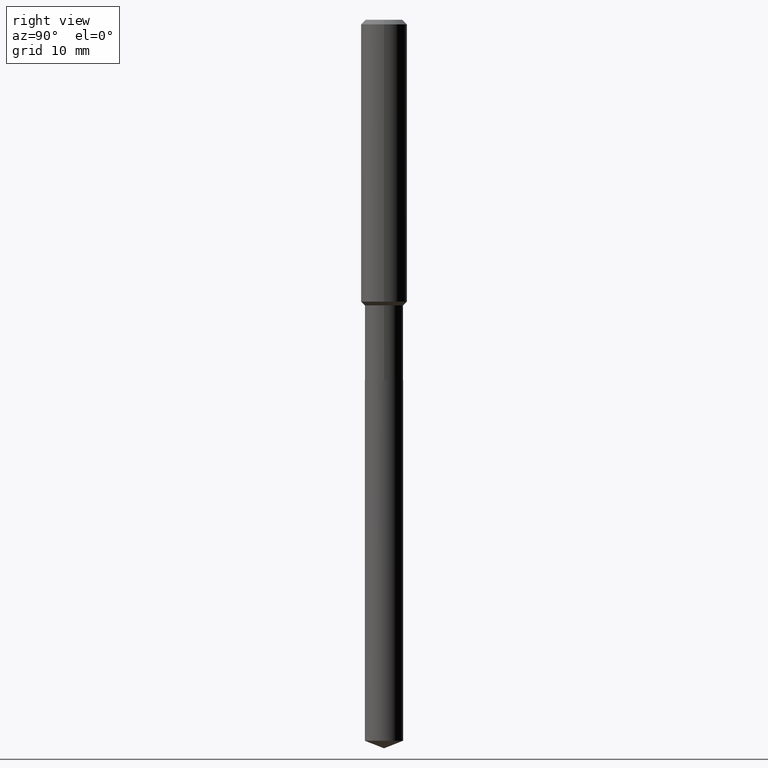
[diagram: clean part render]
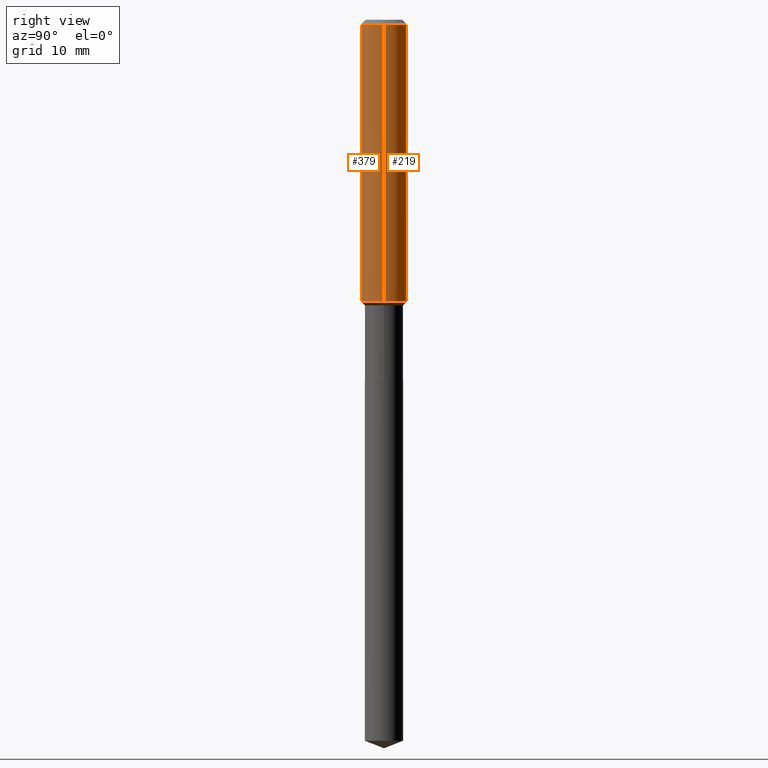
[diagram: same view with one multi-face feature highlighted, each face labeled with its STEP entity id]
A machine part, right view. The highlighted faces form ONE feature: a constant-radius fillet chain: 2 tangent blend faces with common blend radius 2.9997 mm. The faces share edges in the B-rep.
Their STEP definitions:
[1] entity #379 (Cylinder):
#13 = LINE ( 'NONE', #352, #461 ) ;
#28 = CYLINDRICAL_SURFACE ( 'NONE', #183, 0.1181000000000000799 ) ;
#34 = DIRECTION ( 'NONE',  ( -2.445468806185136877E-29, 3.491481338843145188E-15, 1.000000000000000000 ) ) ;
#44 = ORIENTED_EDGE ( 'NONE', *, *, #336, .F. ) ;
#48 = VERTEX_POINT ( 'NONE', #221 ) ;
#57 = VERTEX_POINT ( 'NONE', #262 ) ;
#68 = EDGE_CURVE ( 'NONE', #442, #57, #309, .T. ) ;
#77 = EDGE_CURVE ( 'NONE', #83, #57, #144, .T. ) ;
#80 = DIRECTION ( 'NONE',  ( -2.445468806185136597E-29, 3.491481338843145583E-15, 1.000000000000000000 ) ) ;
#83 = VERTEX_POINT ( 'NONE', #456 ) ;
#106 = ORIENTED_EDGE ( 'NONE', *, *, #231, .T. ) ;
#119 = CARTESIAN_POINT ( 'NONE',  ( 3.538471089109583209E-29, -5.051998923239089154E-15, -1.446949999999999958 ) ) ;
#127 = DIRECTION ( 'NONE',  ( -2.445468806185136597E-29, 3.491481338843145583E-15, 1.000000000000000000 ) ) ;
#144 = LINE ( 'NONE', #294, #390 ) ;
#154 = DIRECTION ( 'NONE',  ( 1.000000000000000000, -6.982962677686263555E-15, 0.000000000000000000 ) ) ;
#157 = CIRCLE ( 'NONE', #453, 0.1181000000000001632 ) ;
#160 = FACE_OUTER_BOUND ( 'NONE', #371, .T. ) ;
#172 = CARTESIAN_POINT ( 'NONE',  ( 5.776197320209327532E-31, -8.246878922347559293E-17, -0.02362000000000014088 ) ) ;
#183 = AXIS2_PLACEMENT_3D ( 'NONE', #359, #127, #322 ) ;
#186 = DIRECTION ( 'NONE',  ( -2.445468806185136877E-29, 3.491481338843145188E-15, 1.000000000000000000 ) ) ;
#221 = CARTESIAN_POINT ( 'NONE',  ( -0.1181000000000001632, -4.212847952306410168E-15, -1.446949999999999958 ) ) ;
#229 = ORIENTED_EDGE ( 'NONE', *, *, #68, .F. ) ;
#231 = EDGE_CURVE ( 'NONE', #48, #83, #157, .T. ) ;
#234 = ORIENTED_EDGE ( 'NONE', *, *, #77, .T. ) ;
#262 = CARTESIAN_POINT ( 'NONE',  ( 0.1180999999999999966, -9.071566814582237199E-16, -0.02362000000000014088 ) ) ;
#279 = CARTESIAN_POINT ( 'NONE',  ( -0.1180999999999999966, -1.728082885298602925E-15, -0.02362000000000014088 ) ) ;
#294 = CARTESIAN_POINT ( 'NONE',  ( 0.1181000000000000799, -8.246878922347486570E-16, 5.758764772215004644E-30 ) ) ;
#309 = CIRCLE ( 'NONE', #318, 0.1180999999999999966 ) ;
#318 = AXIS2_PLACEMENT_3D ( 'NONE', #172, #420, #377 ) ;
#322 = DIRECTION ( 'NONE',  ( 1.000000000000000000, -6.982962677686266711E-15, 4.876176775795936353E-29 ) ) ;
#336 = EDGE_CURVE ( 'NONE', #48, #442, #13, .T. ) ;
#352 = CARTESIAN_POINT ( 'NONE',  ( -0.1181000000000000799, 8.391509709326788873E-16, -5.809262341591047988E-30 ) ) ;
#359 = CARTESIAN_POINT ( 'NONE',  ( 0.000000000000000000, 0.000000000000000000, 0.000000000000000000 ) ) ;
#371 = EDGE_LOOP ( 'NONE', ( #44, #106, #234, #229 ) ) ;
#377 = DIRECTION ( 'NONE',  ( 1.000000000000000000, -6.982962677686266711E-15, 0.000000000000000000 ) ) ;
#379 = ADVANCED_FACE ( 'NONE', ( #160 ), #28, .T. ) ;
#390 = VECTOR ( 'NONE', #34, 39.37007874015748143 ) ;
#420 = DIRECTION ( 'NONE',  ( -2.445468806185136597E-29, 3.491481338843145583E-15, 1.000000000000000000 ) ) ;
#442 = VERTEX_POINT ( 'NONE', #279 ) ;
#453 = AXIS2_PLACEMENT_3D ( 'NONE', #119, #80, #154 ) ;
#456 = CARTESIAN_POINT ( 'NONE',  ( 0.1181000000000001632, -5.876686815473838994E-15, -1.446949999999999958 ) ) ;
#461 = VECTOR ( 'NONE', #186, 39.37007874015748143 ) ;
[2] entity #219 (Cylinder):
#13 = LINE ( 'NONE', #352, #461 ) ;
#15 = DIRECTION ( 'NONE',  ( -2.445468806185136597E-29, 3.491481338843145583E-15, 1.000000000000000000 ) ) ;
#16 = EDGE_LOOP ( 'NONE', ( #170, #201, #445, #440 ) ) ;
#23 = CARTESIAN_POINT ( 'NONE',  ( 3.538471089109583209E-29, -5.051998923239089154E-15, -1.446949999999999958 ) ) ;
#34 = DIRECTION ( 'NONE',  ( -2.445468806185136877E-29, 3.491481338843145188E-15, 1.000000000000000000 ) ) ;
#48 = VERTEX_POINT ( 'NONE', #221 ) ;
#57 = VERTEX_POINT ( 'NONE', #262 ) ;
#62 = CIRCLE ( 'NONE', #329, 0.1180999999999999966 ) ;
#77 = EDGE_CURVE ( 'NONE', #83, #57, #144, .T. ) ;
#83 = VERTEX_POINT ( 'NONE', #456 ) ;
#123 = CARTESIAN_POINT ( 'NONE',  ( 5.776197320209327532E-31, -8.246878922347559293E-17, -0.02362000000000014088 ) ) ;
#144 = LINE ( 'NONE', #294, #390 ) ;
#156 = DIRECTION ( 'NONE',  ( 1.000000000000000000, -6.982962677686266711E-15, 0.000000000000000000 ) ) ;
#170 = ORIENTED_EDGE ( 'NONE', *, *, #422, .T. ) ;
#186 = DIRECTION ( 'NONE',  ( -2.445468806185136877E-29, 3.491481338843145188E-15, 1.000000000000000000 ) ) ;
#201 = ORIENTED_EDGE ( 'NONE', *, *, #336, .T. ) ;
#219 = ADVANCED_FACE ( 'NONE', ( #275 ), #358, .T. ) ;
#221 = CARTESIAN_POINT ( 'NONE',  ( -0.1181000000000001632, -4.212847952306410168E-15, -1.446949999999999958 ) ) ;
#228 = AXIS2_PLACEMENT_3D ( 'NONE', #317, #15, #357 ) ;
#262 = CARTESIAN_POINT ( 'NONE',  ( 0.1180999999999999966, -9.071566814582237199E-16, -0.02362000000000014088 ) ) ;
#266 = AXIS2_PLACEMENT_3D ( 'NONE', #23, #362, #332 ) ;
#273 = DIRECTION ( 'NONE',  ( -2.445468806185136597E-29, 3.491481338843145583E-15, 1.000000000000000000 ) ) ;
#275 = FACE_OUTER_BOUND ( 'NONE', #16, .T. ) ;
#279 = CARTESIAN_POINT ( 'NONE',  ( -0.1180999999999999966, -1.728082885298602925E-15, -0.02362000000000014088 ) ) ;
#294 = CARTESIAN_POINT ( 'NONE',  ( 0.1181000000000000799, -8.246878922347486570E-16, 5.758764772215004644E-30 ) ) ;
#306 = EDGE_CURVE ( 'NONE', #57, #442, #62, .T. ) ;
#317 = CARTESIAN_POINT ( 'NONE',  ( 0.000000000000000000, 0.000000000000000000, 0.000000000000000000 ) ) ;
#319 = CIRCLE ( 'NONE', #266, 0.1181000000000001632 ) ;
#329 = AXIS2_PLACEMENT_3D ( 'NONE', #123, #273, #156 ) ;
#332 = DIRECTION ( 'NONE',  ( 1.000000000000000000, -6.982962677686263555E-15, 0.000000000000000000 ) ) ;
#336 = EDGE_CURVE ( 'NONE', #48, #442, #13, .T. ) ;
#352 = CARTESIAN_POINT ( 'NONE',  ( -0.1181000000000000799, 8.391509709326788873E-16, -5.809262341591047988E-30 ) ) ;
#357 = DIRECTION ( 'NONE',  ( 1.000000000000000000, -6.982962677686266711E-15, 4.876176775795936353E-29 ) ) ;
#358 = CYLINDRICAL_SURFACE ( 'NONE', #228, 0.1181000000000000799 ) ;
#362 = DIRECTION ( 'NONE',  ( -2.445468806185136597E-29, 3.491481338843145583E-15, 1.000000000000000000 ) ) ;
#390 = VECTOR ( 'NONE', #34, 39.37007874015748143 ) ;
#422 = EDGE_CURVE ( 'NONE', #83, #48, #319, .T. ) ;
#440 = ORIENTED_EDGE ( 'NONE', *, *, #77, .F. ) ;
#442 = VERTEX_POINT ( 'NONE', #279 ) ;
#445 = ORIENTED_EDGE ( 'NONE', *, *, #306, .F. ) ;
#456 = CARTESIAN_POINT ( 'NONE',  ( 0.1181000000000001632, -5.876686815473838994E-15, -1.446949999999999958 ) ) ;
#461 = VECTOR ( 'NONE', #186, 39.37007874015748143 ) ;